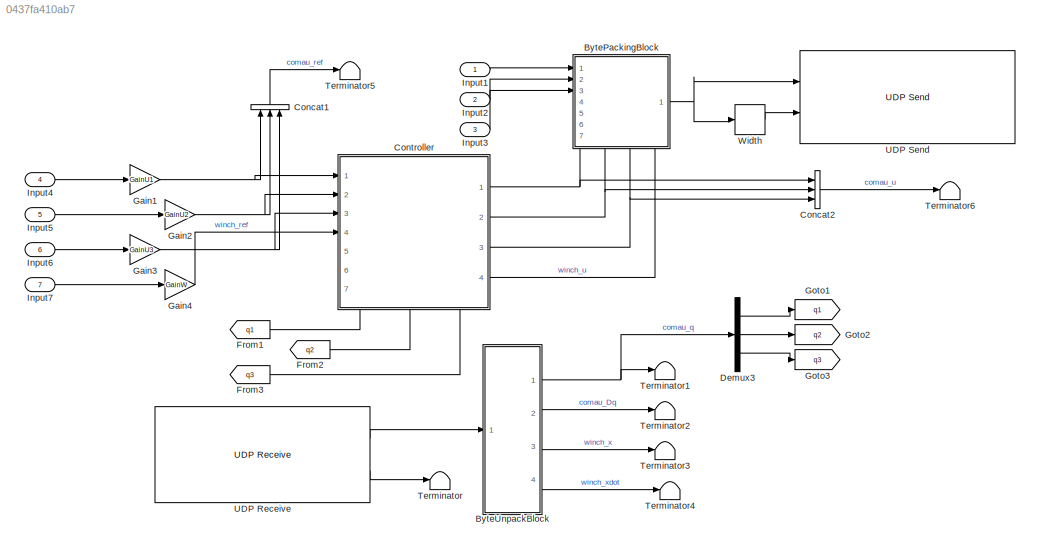
MODEL slx_0437fa410ab7
KIND model
CONFIG AbsTol = auto
CONFIG EnableMultiTasking = on
CONFIG FixedStep = Ts
CONFIG MaxStep = auto
CONFIG MinStep = auto
CONFIG RelTol = 1e-3
CONFIG SampleTimeConstraint = Unconstrained
CONFIG SolverName = ode4
CONFIG StartTime = 0.0
CONFIG StopTime = 10
WORKSPACE source: mxarray member
WORKSPACE AU1 = 0.174532925199
WORKSPACE AU2 = 0
WORKSPACE AU3 = 0
WORKSPACE AW = 0
WORKSPACE FU1 = 0.1
WORKSPACE FU2 = 0
WORKSPACE FU3 = 0
WORKSPACE FW = 0
WORKSPACE GainU1 = 1
WORKSPACE GainU2 = 1
WORKSPACE GainU3 = 1
WORKSPACE GainW = 1
WORKSPACE KD1 = 0
WORKSPACE KD2 = 0
WORKSPACE KD3 = 0
WORKSPACE KI1 = 0
WORKSPACE KI2 = 0
WORKSPACE KI3 = 0
WORKSPACE KP1 = 1
WORKSPACE KP2 = 1
WORKSPACE KP3 = 1
WORKSPACE N1 = 100
WORKSPACE N2 = 100
WORKSPACE N3 = 100
WORKSPACE SatU1 = 0.174532920122
WORKSPACE SatU2 = 0.174532920122
WORKSPACE SatU3 = 0.174532920122
WORKSPACE SatW = 0.300000011921
WORKSPACE controlMode = 0
WORKSPACE qref = [0.698131680489 -0.523598790169 -1.57079637051]
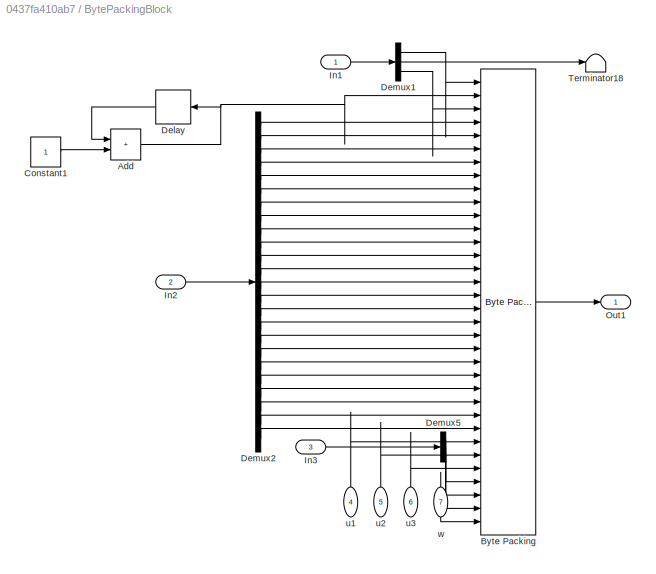
BLOCK [SubSystem] BytePackingBlock
  NameLocation = top
  PortSchema = {"entries":[{"content":{"sides":[{"content":{"connectorIds":["In1","In2","In3"]},"type":"ConnectorPlacement.EquallySpacedRectSide","uuid":"2ce4a3a0-ffcc-43d7-9a0a-8eda699e79f7"},{"content":{"connectorIds":["Out1"],"side":"RIGHT"},"type":"ConnectorPlacement.EquallySpacedRectSide","uuid":"6b0835cb-1c02-4104-b44f-3bd25ad1f1a4"},{"content":{"connectorIds":[],"side":"TOP"},"type":"ConnectorPlacement.Eq...<+419ch>
  Ports = [7, 1]
  RequestExecContextInheritance = off
BLOCK [Sum] BytePackingBlock/Add
  IconShape = rectangular
  Ports = [2, 1]
BLOCK [Reference] BytePackingBlock/Byte Packing  REF=slrealtimeutilitieslib/Byte Packing
  Ports = [34, 1]
  SourceBlock = slrealtimeutilitieslib/Byte Packing
  SourceProductBaseCode = XP
  SourceType = slrealtimebytepacking
BLOCK [Constant] BytePackingBlock/Constant1
  OutDataTypeStr = uint32
BLOCK [Delay] BytePackingBlock/Delay
  DelayLength = 1
  InputPortMap = u0
  Ports = [1, 1]
BLOCK [Demux] BytePackingBlock/Demux1
  Outputs = 3
  Ports = [1, 3]
BLOCK [Demux] BytePackingBlock/Demux2
  Outputs = 24
  Ports = [1, 24]
BLOCK [Demux] BytePackingBlock/Demux5
  Outputs = 3
  Ports = [1, 3]
BLOCK [Inport] BytePackingBlock/In1
BLOCK [Inport] BytePackingBlock/In2
  Port = 2
BLOCK [Inport] BytePackingBlock/In3
  Port = 3
BLOCK [Outport] BytePackingBlock/Out1
BLOCK [Terminator] BytePackingBlock/Terminator18
BLOCK [Inport] BytePackingBlock/u1
  Port = 4
BLOCK [Inport] BytePackingBlock/u2
  Port = 5
BLOCK [Inport] BytePackingBlock/u3
  Port = 6
BLOCK [Inport] BytePackingBlock/w
  Port = 7
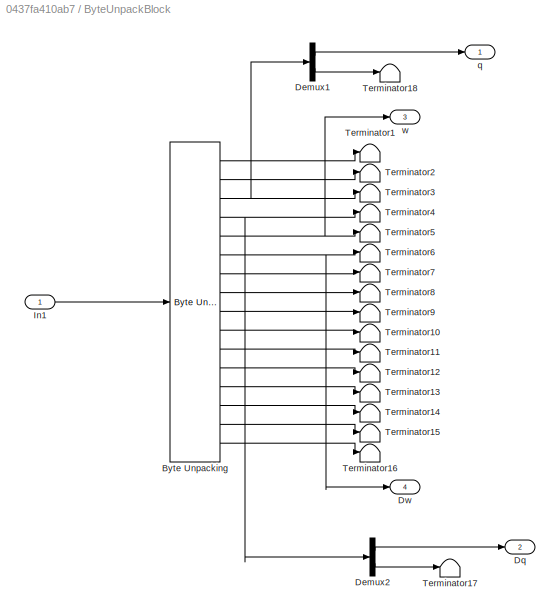
BLOCK [SubSystem] ByteUnpackBlock
  Ports = [1, 4]
  RequestExecContextInheritance = off
BLOCK [Reference] ByteUnpackBlock/Byte Unpacking  REF=slrealtimeutilitieslib/Byte Unpacking
  Ports = [1, 16]
  SourceBlock = slrealtimeutilitieslib/Byte Unpacking
  SourceProductBaseCode = XP
  SourceType = slreraltimebytepacking
BLOCK [Demux] ByteUnpackBlock/Demux1
  Outputs = 2
  Ports = [1, 2]
BLOCK [Demux] ByteUnpackBlock/Demux2
  Outputs = 2
  Ports = [1, 2]
BLOCK [Outport] ByteUnpackBlock/Dq
  Port = 2
BLOCK [Outport] ByteUnpackBlock/Dw
  Port = 4
BLOCK [Inport] ByteUnpackBlock/In1
BLOCK [Terminator] ByteUnpackBlock/Terminator1
BLOCK [Terminator] ByteUnpackBlock/Terminator10
BLOCK [Terminator] ByteUnpackBlock/Terminator11
BLOCK [Terminator] ByteUnpackBlock/Terminator12
BLOCK [Terminator] ByteUnpackBlock/Terminator13
BLOCK [Terminator] ByteUnpackBlock/Terminator14
BLOCK [Terminator] ByteUnpackBlock/Terminator15
BLOCK [Terminator] ByteUnpackBlock/Terminator16
BLOCK [Terminator] ByteUnpackBlock/Terminator17
BLOCK [Terminator] ByteUnpackBlock/Terminator18
BLOCK [Terminator] ByteUnpackBlock/Terminator2
BLOCK [Terminator] ByteUnpackBlock/Terminator3
BLOCK [Terminator] ByteUnpackBlock/Terminator4
BLOCK [Terminator] ByteUnpackBlock/Terminator5
BLOCK [Terminator] ByteUnpackBlock/Terminator6
BLOCK [Terminator] ByteUnpackBlock/Terminator7
BLOCK [Terminator] ByteUnpackBlock/Terminator8
BLOCK [Terminator] ByteUnpackBlock/Terminator9
BLOCK [Outport] ByteUnpackBlock/q
BLOCK [Outport] ByteUnpackBlock/w
  Port = 3
BLOCK [Concatenate] Concat1
  ConcatenateDimension = 2
  NameLocation = right
  NumInputs = 3
  Ports = [3, 1]
BLOCK [Concatenate] Concat2
  ConcatenateDimension = 2
  NumInputs = 3
  Ports = [3, 1]
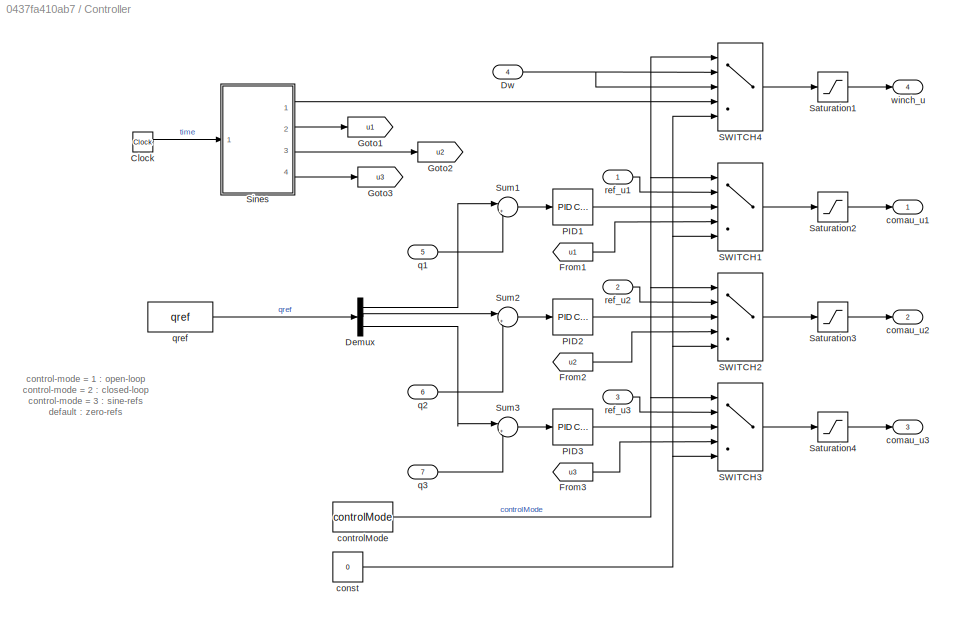
BLOCK [SubSystem] Controller
  NameLocation = top
  PortSchema = {"entries":[{"content":{"sides":[{"content":{"connectorIds":["In1","In2","In3","In4"]},"type":"ConnectorPlacement.EquallySpacedRectSide","uuid":"8cd68c6a-417b-4593-9fd2-f26242799ae2"},{"content":{"connectorIds":["Out1","Out2","Out3","Out4"],"side":"RIGHT"},"type":"ConnectorPlacement.EquallySpacedRectSide","uuid":"847d4d9d-1a2d-44bd-a0b5-d0f29db0c6e7"},{"content":{"connectorIds":[],"side":"TOP"},"t...<+440ch>
  Ports = [7, 4]
  RequestExecContextInheritance = off
BLOCK [Clock] Controller/Clock
BLOCK [Demux] Controller/Demux
  Outputs = 3
  Ports = [1, 3]
BLOCK [Inport] Controller/Dw
  Port = 4
BLOCK [From] Controller/From1
  GotoTag = u1
BLOCK [From] Controller/From2
  GotoTag = u2
BLOCK [From] Controller/From3
  GotoTag = u3
BLOCK [Goto] Controller/Goto1
  GotoTag = u1
BLOCK [Goto] Controller/Goto2
  GotoTag = u2
BLOCK [Goto] Controller/Goto3
  GotoTag = u3
BLOCK [Reference] Controller/PID1  REF=slpidlib/PID Controller
  Ports = [1, 1]
  SourceBlock = slpidlib/PID Controller
  SourceProductBaseCode = SL
  SourceType = PID 1dof
BLOCK [Reference] Controller/PID2  REF=slpidlib/PID Controller
  Ports = [1, 1]
  SourceBlock = slpidlib/PID Controller
  SourceProductBaseCode = SL
  SourceType = PID 1dof
BLOCK [Reference] Controller/PID3  REF=slpidlib/PID Controller
  Ports = [1, 1]
  SourceBlock = slpidlib/PID Controller
  SourceProductBaseCode = SL
  SourceType = PID 1dof
BLOCK [MultiPortSwitch] Controller/SWITCH1
  DataPortForDefault = Additional data port
  InputSameDT = off
  Ports = [5, 1]
  SaturateOnIntegerOverflow = off
BLOCK [MultiPortSwitch] Controller/SWITCH2
  DataPortForDefault = Additional data port
  InputSameDT = off
  Ports = [5, 1]
  SaturateOnIntegerOverflow = off
BLOCK [MultiPortSwitch] Controller/SWITCH3
  DataPortForDefault = Additional data port
  InputSameDT = off
  Ports = [5, 1]
  SaturateOnIntegerOverflow = off
BLOCK [MultiPortSwitch] Controller/SWITCH4
  DataPortForDefault = Additional data port
  DataPortIndices = {1,3}
  InputSameDT = off
  Ports = [5, 1]
  SaturateOnIntegerOverflow = off
BLOCK [Saturate] Controller/Saturation1
  LowerLimit = -SatW
  UpperLimit = SatW
BLOCK [Saturate] Controller/Saturation2
  LowerLimit = -SatU1
  UpperLimit = SatU1
BLOCK [Saturate] Controller/Saturation3
  LowerLimit = -SatU2
  UpperLimit = SatU2
BLOCK [Saturate] Controller/Saturation4
  LowerLimit = -SatU3
  UpperLimit = SatU3
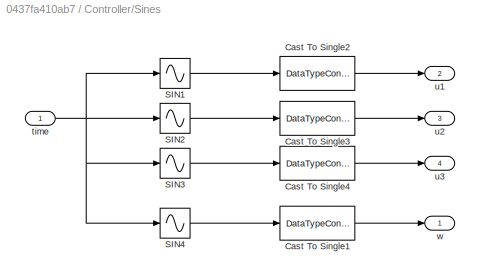
BLOCK [SubSystem] Controller/Sines
  Ports = [1, 4]
  RequestExecContextInheritance = off
BLOCK [DataTypeConversion] Controller/Sines/Cast To Single1
  OutDataTypeStr = single
  RndMeth = Floor
  SaturateOnIntegerOverflow = off
BLOCK [DataTypeConversion] Controller/Sines/Cast To Single2
  OutDataTypeStr = single
  RndMeth = Floor
  SaturateOnIntegerOverflow = off
BLOCK [DataTypeConversion] Controller/Sines/Cast To Single3
  OutDataTypeStr = single
  RndMeth = Floor
  SaturateOnIntegerOverflow = off
BLOCK [DataTypeConversion] Controller/Sines/Cast To Single4
  OutDataTypeStr = single
  RndMeth = Floor
  SaturateOnIntegerOverflow = off
BLOCK [Sin] Controller/Sines/SIN1
  Amplitude = AU1
  Frequency = FU1*2*pi
  Ports = [1, 1]
  SampleTime = 0
  TimeSource = Use external signal
BLOCK [Sin] Controller/Sines/SIN2
  Amplitude = AU2
  Frequency = FU2*2*pi
  Ports = [1, 1]
  SampleTime = 0
  TimeSource = Use external signal
BLOCK [Sin] Controller/Sines/SIN3
  Amplitude = AU3
  Frequency = FU3*2*pi
  Ports = [1, 1]
  SampleTime = 0
  TimeSource = Use external signal
BLOCK [Sin] Controller/Sines/SIN4
  Amplitude = AW
  Frequency = FW*2*pi
  Ports = [1, 1]
  SampleTime = 0
  TimeSource = Use external signal
BLOCK [Inport] Controller/Sines/time
BLOCK [Outport] Controller/Sines/u1
  Port = 2
BLOCK [Outport] Controller/Sines/u2
  Port = 3
BLOCK [Outport] Controller/Sines/u3
  Port = 4
BLOCK [Outport] Controller/Sines/w
BLOCK [Sum] Controller/Sum1
  Inputs = |+-
  Ports = [2, 1]
BLOCK [Sum] Controller/Sum2
  Inputs = |+-
  Ports = [2, 1]
BLOCK [Sum] Controller/Sum3
  Inputs = |+-
  Ports = [2, 1]
BLOCK [Outport] Controller/comau_u1
BLOCK [Outport] Controller/comau_u2
  Port = 2
BLOCK [Outport] Controller/comau_u3
  Port = 3
BLOCK [Constant] Controller/const
  OutDataTypeStr = single
  Value = 0
BLOCK [Constant] Controller/controlMode
  OutDataTypeStr = double
  Value = controlMode
BLOCK [Inport] Controller/q1
  Port = 5
BLOCK [Inport] Controller/q2
  Port = 6
BLOCK [Inport] Controller/q3
  Port = 7
BLOCK [Constant] Controller/qref
  Value = qref
BLOCK [Inport] Controller/ref_u1
BLOCK [Inport] Controller/ref_u2
  Port = 2
BLOCK [Inport] Controller/ref_u3
  Port = 3
BLOCK [Outport] Controller/winch_u
  Port = 4
BLOCK [Demux] Demux3
  Outputs = 3
  Ports = [1, 3]
BLOCK [From] From1
  GotoTag = q1
BLOCK [From] From2
  GotoTag = q2
BLOCK [From] From3
  GotoTag = q3
BLOCK [Gain] Gain1
  Gain = GainU1
  OutDataTypeStr = single
BLOCK [Gain] Gain2
  Gain = GainU2
  OutDataTypeStr = single
BLOCK [Gain] Gain3
  Gain = GainU3
  OutDataTypeStr = single
BLOCK [Gain] Gain4
  Gain = GainW
  OutDataTypeStr = single
BLOCK [Goto] Goto1
  GotoTag = q1
BLOCK [Goto] Goto2
  GotoTag = q2
BLOCK [Goto] Goto3
  GotoTag = q3
BLOCK [Inport] Input1
  OutDataTypeStr = uint32
BLOCK [Inport] Input2
  OutDataTypeStr = single
  Port = 2
BLOCK [Inport] Input3
  OutDataTypeStr = single
  Port = 3
BLOCK [Inport] Input4
  LockScale = on
  OutDataTypeStr = single
  Port = 4
BLOCK [Inport] Input5
  LockScale = on
  OutDataTypeStr = single
  Port = 5
BLOCK [Inport] Input6
  LockScale = on
  OutDataTypeStr = single
  Port = 6
BLOCK [Inport] Input7
  OutDataTypeStr = single
  Port = 7
BLOCK [Terminator] Terminator
BLOCK [Terminator] Terminator1
BLOCK [Terminator] Terminator2
BLOCK [Terminator] Terminator3
BLOCK [Terminator] Terminator4
BLOCK [Terminator] Terminator5
BLOCK [Terminator] Terminator6
BLOCK [Reference] UDP Receive  REF=slrealtimeiplib/UDP Receive
  Ports = [0, 2]
  SourceBlock = slrealtimeiplib/UDP Receive
  SourceProductBaseCode = XP
  SourceType = slrealtimeudpreceive
BLOCK [Reference] UDP Send  REF=slrealtimeiplib/UDP Send
  Ports = [2]
  SourceBlock = slrealtimeiplib/UDP Send
  SourceProductBaseCode = XP
  SourceType = slrealtimeudpsend
BLOCK [Width] Width
ANNOTATION Controller: control-mode = 1 : open-loop control-mode = 2 : closed-loop control-mode = 3 : sine-refs default : zero-refs
NET BytePackingBlock/Add:1 -> BytePackingBlock/Byte Packing:2, BytePackingBlock/Delay:1
LINE BytePackingBlock/Byte Packing:1 -> BytePackingBlock/Out1:1
LINE BytePackingBlock/Constant1:1 -> BytePackingBlock/Add:2
LINE BytePackingBlock/Delay:1 -> BytePackingBlock/Add:1
LINE BytePackingBlock/Demux1:1 -> BytePackingBlock/Byte Packing:1
LINE BytePackingBlock/Demux1:2 -> BytePackingBlock/Terminator18:1
LINE BytePackingBlock/Demux1:3 -> BytePackingBlock/Byte Packing:3
LINE BytePackingBlock/Demux2:1 -> BytePackingBlock/Byte Packing:4
LINE BytePackingBlock/Demux2:10 -> BytePackingBlock/Byte Packing:13
LINE BytePackingBlock/Demux2:11 -> BytePackingBlock/Byte Packing:14
LINE BytePackingBlock/Demux2:12 -> BytePackingBlock/Byte Packing:15
LINE BytePackingBlock/Demux2:13 -> BytePackingBlock/Byte Packing:16
LINE BytePackingBlock/Demux2:14 -> BytePackingBlock/Byte Packing:17
LINE BytePackingBlock/Demux2:15 -> BytePackingBlock/Byte Packing:18
LINE BytePackingBlock/Demux2:16 -> BytePackingBlock/Byte Packing:19
LINE BytePackingBlock/Demux2:17 -> BytePackingBlock/Byte Packing:20
LINE BytePackingBlock/Demux2:18 -> BytePackingBlock/Byte Packing:21
LINE BytePackingBlock/Demux2:19 -> BytePackingBlock/Byte Packing:22
LINE BytePackingBlock/Demux2:2 -> BytePackingBlock/Byte Packing:5
LINE BytePackingBlock/Demux2:20 -> BytePackingBlock/Byte Packing:23
LINE BytePackingBlock/Demux2:21 -> BytePackingBlock/Byte Packing:24
LINE BytePackingBlock/Demux2:22 -> BytePackingBlock/Byte Packing:25
LINE BytePackingBlock/Demux2:23 -> BytePackingBlock/Byte Packing:26
LINE BytePackingBlock/Demux2:24 -> BytePackingBlock/Byte Packing:27
LINE BytePackingBlock/Demux2:3 -> BytePackingBlock/Byte Packing:6
LINE BytePackingBlock/Demux2:4 -> BytePackingBlock/Byte Packing:7
LINE BytePackingBlock/Demux2:5 -> BytePackingBlock/Byte Packing:8
LINE BytePackingBlock/Demux2:6 -> BytePackingBlock/Byte Packing:9
LINE BytePackingBlock/Demux2:7 -> BytePackingBlock/Byte Packing:10
LINE BytePackingBlock/Demux2:8 -> BytePackingBlock/Byte Packing:11
LINE BytePackingBlock/Demux2:9 -> BytePackingBlock/Byte Packing:12
LINE BytePackingBlock/Demux5:1 -> BytePackingBlock/Byte Packing:31
LINE BytePackingBlock/Demux5:2 -> BytePackingBlock/Byte Packing:32
LINE BytePackingBlock/Demux5:3 -> BytePackingBlock/Byte Packing:33
LINE BytePackingBlock/In1:1 -> BytePackingBlock/Demux1:1
LINE BytePackingBlock/In2:1 -> BytePackingBlock/Demux2:1
LINE BytePackingBlock/In3:1 -> BytePackingBlock/Demux5:1
LINE BytePackingBlock/u1:1 -> BytePackingBlock/Byte Packing:28
LINE BytePackingBlock/u2:1 -> BytePackingBlock/Byte Packing:29
LINE BytePackingBlock/u3:1 -> BytePackingBlock/Byte Packing:30
LINE BytePackingBlock/w:1 -> BytePackingBlock/Byte Packing:34
NET BytePackingBlock:1 -> UDP Send:1, Width:1
LINE ByteUnpackBlock/Byte Unpacking:1 -> ByteUnpackBlock/Terminator1:1
LINE ByteUnpackBlock/Byte Unpacking:10 -> ByteUnpackBlock/Terminator10:1
LINE ByteUnpackBlock/Byte Unpacking:11 -> ByteUnpackBlock/Terminator11:1
LINE ByteUnpackBlock/Byte Unpacking:12 -> ByteUnpackBlock/Terminator12:1
LINE ByteUnpackBlock/Byte Unpacking:13 -> ByteUnpackBlock/Terminator13:1
LINE ByteUnpackBlock/Byte Unpacking:14 -> ByteUnpackBlock/Terminator14:1
LINE ByteUnpackBlock/Byte Unpacking:15 -> ByteUnpackBlock/Terminator15:1
LINE ByteUnpackBlock/Byte Unpacking:16 -> ByteUnpackBlock/Terminator16:1
LINE ByteUnpackBlock/Byte Unpacking:2 -> ByteUnpackBlock/Terminator2:1
NET ByteUnpackBlock/Byte Unpacking:3 -> ByteUnpackBlock/Demux1:1, ByteUnpackBlock/Terminator3:1
NET ByteUnpackBlock/Byte Unpacking:4 -> ByteUnpackBlock/Demux2:1, ByteUnpackBlock/Terminator4:1
NET ByteUnpackBlock/Byte Unpacking:5 -> ByteUnpackBlock/Terminator5:1, ByteUnpackBlock/w:1
NET ByteUnpackBlock/Byte Unpacking:6 -> ByteUnpackBlock/Dw:1, ByteUnpackBlock/Terminator6:1
LINE ByteUnpackBlock/Byte Unpacking:7 -> ByteUnpackBlock/Terminator7:1
LINE ByteUnpackBlock/Byte Unpacking:8 -> ByteUnpackBlock/Terminator8:1
LINE ByteUnpackBlock/Byte Unpacking:9 -> ByteUnpackBlock/Terminator9:1
LINE ByteUnpackBlock/Demux1:1 -> ByteUnpackBlock/q:1
LINE ByteUnpackBlock/Demux1:2 -> ByteUnpackBlock/Terminator18:1
LINE ByteUnpackBlock/Demux2:1 -> ByteUnpackBlock/Dq:1
LINE ByteUnpackBlock/Demux2:2 -> ByteUnpackBlock/Terminator17:1
LINE ByteUnpackBlock/In1:1 -> ByteUnpackBlock/Byte Unpacking:1
NET ByteUnpackBlock:1 -> Demux3:1, Terminator1:1
LINE ByteUnpackBlock:2 -> Terminator2:1
LINE ByteUnpackBlock:3 -> Terminator3:1
LINE ByteUnpackBlock:4 -> Terminator4:1
LINE Concat1:1 -> Terminator5:1
LINE Concat2:1 -> Terminator6:1
LINE Controller/Clock:1 -> Controller/Sines:1
LINE Controller/Demux:1 -> Controller/Sum1:1
LINE Controller/Demux:2 -> Controller/Sum2:1
LINE Controller/Demux:3 -> Controller/Sum3:1
NET Controller/Dw:1 -> Controller/SWITCH4:2, Controller/SWITCH4:3
LINE Controller/From1:1 -> Controller/SWITCH1:4
LINE Controller/From2:1 -> Controller/SWITCH2:4
LINE Controller/From3:1 -> Controller/SWITCH3:4
LINE Controller/PID1:1 -> Controller/SWITCH1:3
LINE Controller/PID2:1 -> Controller/SWITCH2:3
LINE Controller/PID3:1 -> Controller/SWITCH3:3
LINE Controller/SWITCH1:1 -> Controller/Saturation2:1
LINE Controller/SWITCH2:1 -> Controller/Saturation3:1
LINE Controller/SWITCH3:1 -> Controller/Saturation4:1
LINE Controller/SWITCH4:1 -> Controller/Saturation1:1
LINE Controller/Saturation1:1 -> Controller/winch_u:1
LINE Controller/Saturation2:1 -> Controller/comau_u1:1
LINE Controller/Saturation3:1 -> Controller/comau_u2:1
LINE Controller/Saturation4:1 -> Controller/comau_u3:1
LINE Controller/Sines/Cast To Single1:1 -> Controller/Sines/w:1
LINE Controller/Sines/Cast To Single2:1 -> Controller/Sines/u1:1
LINE Controller/Sines/Cast To Single3:1 -> Controller/Sines/u2:1
LINE Controller/Sines/Cast To Single4:1 -> Controller/Sines/u3:1
LINE Controller/Sines/SIN1:1 -> Controller/Sines/Cast To Single2:1
LINE Controller/Sines/SIN2:1 -> Controller/Sines/Cast To Single3:1
LINE Controller/Sines/SIN3:1 -> Controller/Sines/Cast To Single4:1
LINE Controller/Sines/SIN4:1 -> Controller/Sines/Cast To Single1:1
NET Controller/Sines/time:1 -> Controller/Sines/SIN1:1, Controller/Sines/SIN2:1, Controller/Sines/SIN3:1, Controller/Sines/SIN4:1
LINE Controller/Sines:1 -> Controller/SWITCH4:4
LINE Controller/Sines:2 -> Controller/Goto1:1
LINE Controller/Sines:3 -> Controller/Goto2:1
LINE Controller/Sines:4 -> Controller/Goto3:1
LINE Controller/Sum1:1 -> Controller/PID1:1
LINE Controller/Sum2:1 -> Controller/PID2:1
LINE Controller/Sum3:1 -> Controller/PID3:1
NET Controller/const:1 -> Controller/SWITCH1:5, Controller/SWITCH2:5, Controller/SWITCH3:5, Controller/SWITCH4:5
NET Controller/controlMode:1 -> Controller/SWITCH1:1, Controller/SWITCH2:1, Controller/SWITCH3:1, Controller/SWITCH4:1
LINE Controller/q1:1 -> Controller/Sum1:2
LINE Controller/q2:1 -> Controller/Sum2:2
LINE Controller/q3:1 -> Controller/Sum3:2
LINE Controller/qref:1 -> Controller/Demux:1
LINE Controller/ref_u1:1 -> Controller/SWITCH1:2
LINE Controller/ref_u2:1 -> Controller/SWITCH2:2
LINE Controller/ref_u3:1 -> Controller/SWITCH3:2
NET Controller:1 -> BytePackingBlock:4, Concat2:1
NET Controller:2 -> BytePackingBlock:5, Concat2:2
NET Controller:3 -> BytePackingBlock:6, Concat2:3
LINE Controller:4 -> BytePackingBlock:7
LINE Demux3:1 -> Goto1:1
LINE Demux3:2 -> Goto2:1
LINE Demux3:3 -> Goto3:1
LINE From1:1 -> Controller:5
LINE From2:1 -> Controller:6
LINE From3:1 -> Controller:7
NET Gain1:1 -> Concat1:1, Controller:1
NET Gain2:1 -> Concat1:2, Controller:2
NET Gain3:1 -> Concat1:3, Controller:3
LINE Gain4:1 -> Controller:4
LINE Input1:1 -> BytePackingBlock:1
LINE Input2:1 -> BytePackingBlock:2
LINE Input3:1 -> BytePackingBlock:3
LINE Input4:1 -> Gain1:1
LINE Input5:1 -> Gain2:1
LINE Input6:1 -> Gain3:1
LINE Input7:1 -> Gain4:1
LINE UDP Receive:1 -> ByteUnpackBlock:1
LINE UDP Receive:2 -> Terminator:1
LINE Width:1 -> UDP Send:2
note: NET lines group one-source signal fan-out (src -> all destinations, sorted); 1:1 wires keep LINE
